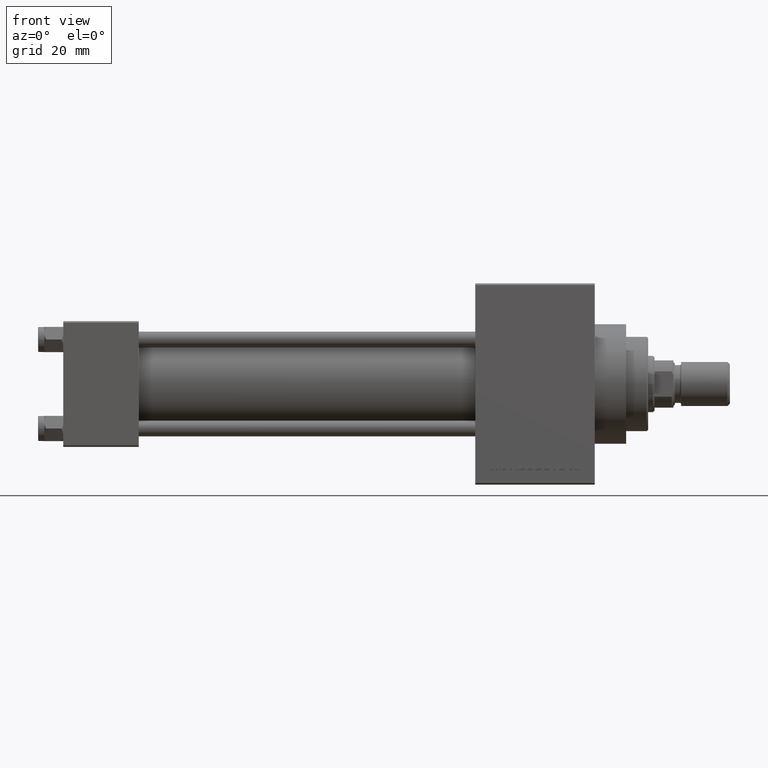
[diagram: clean part render]
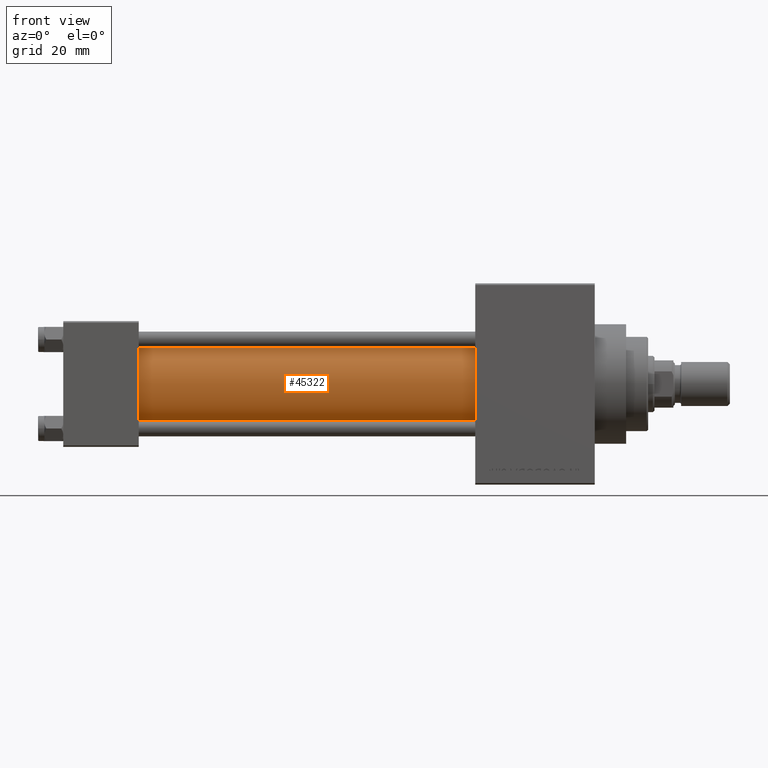
[diagram: same view with one face highlighted and labeled with its STEP entity id]
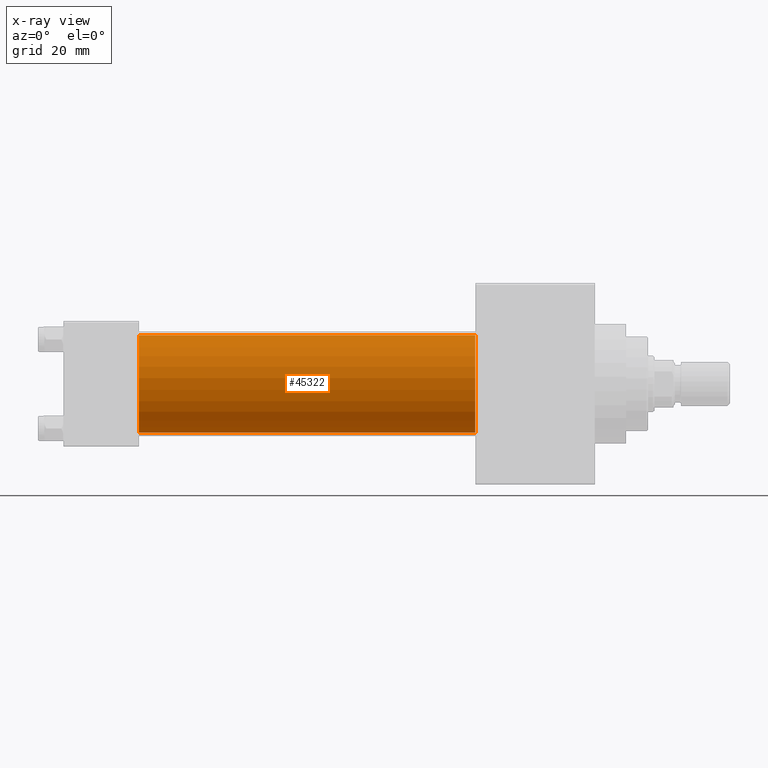
[diagram: x-ray of the same camera — body ghosted, the highlighted face saturated]
A machine part, front view. The second image highlights one B-rep face of the part: STEP entity #45322.
The next image is the same camera in x-ray: the body ghosted, the highlighted face saturated — about 0% of this face is hidden behind the body in this view.
In plain terms, the highlighted cylindrical surface (partial cylindrical patch) has radius 15.5 mm, axis along (-1, -0, -0).
Its self-contained STEP definition (entity closure, byte-faithful):
#356 = DIRECTION ( 'NONE',  ( -1.000000000000000000, -0.000000000000000000, -0.000000000000000000 ) ) ;
#902 = AXIS2_PLACEMENT_3D ( 'NONE', #8734, #4418, #23408 ) ;
#2877 = VECTOR ( 'NONE', #28316, 1000.000000000000000 ) ;
#4154 = EDGE_CURVE ( 'NONE', #38408, #46914, #37746, .T. ) ;
#4418 = DIRECTION ( 'NONE',  ( 1.000000000000000000, 0.000000000000000000, 0.000000000000000000 ) ) ;
#4882 = CARTESIAN_POINT ( 'NONE',  ( 131.0000000000000000, -2.602085213965210642E-15, 15.50000000000000000 ) ) ;
#6272 = CARTESIAN_POINT ( 'NONE',  ( 131.0000000000000000, -7.038826752868131828E-16, -15.50000000000000000 ) ) ;
#6770 = EDGE_CURVE ( 'NONE', #46914, #12210, #23609, .T. ) ;
#8734 = CARTESIAN_POINT ( 'NONE',  ( 131.0000000000000000, -2.602085213965210642E-15, 0.000000000000000000 ) ) ;
#10277 = CARTESIAN_POINT ( 'NONE',  ( 23.99999999999999289, -2.602085213965210642E-15, 0.000000000000000000 ) ) ;
#12210 = VERTEX_POINT ( 'NONE', #14499 ) ;
#13654 = DIRECTION ( 'NONE',  ( 0.000000000000000000, 0.000000000000000000, 1.000000000000000000 ) ) ;
#13883 = CARTESIAN_POINT ( 'NONE',  ( 131.0000000000000000, -2.602085213965210642E-15, 15.50000000000000000 ) ) ;
#14499 = CARTESIAN_POINT ( 'NONE',  ( 23.99999999999999289, -7.038826752868131828E-16, -15.50000000000000000 ) ) ;
#16904 = VERTEX_POINT ( 'NONE', #22179 ) ;
#20826 = ORIENTED_EDGE ( 'NONE', *, *, #6770, .F. ) ;
#22179 = CARTESIAN_POINT ( 'NONE',  ( 23.99999999999999289, -2.602085213965210642E-15, 15.50000000000000000 ) ) ;
#22476 = CARTESIAN_POINT ( 'NONE',  ( 131.0000000000000000, -2.602085213965210642E-15, 0.000000000000000000 ) ) ;
#23408 = DIRECTION ( 'NONE',  ( 0.000000000000000000, 0.000000000000000000, -1.000000000000000000 ) ) ;
#23609 = LINE ( 'NONE', #31760, #26324 ) ;
#25793 = AXIS2_PLACEMENT_3D ( 'NONE', #22476, #356, #29706 ) ;
#26324 = VECTOR ( 'NONE', #34901, 1000.000000000000000 ) ;
#26797 = CYLINDRICAL_SURFACE ( 'NONE', #25793, 15.50000000000000000 ) ;
#27868 = EDGE_LOOP ( 'NONE', ( #20826, #40325, #41860, #29237 ) ) ;
#28316 = DIRECTION ( 'NONE',  ( -1.000000000000000000, -0.000000000000000000, -0.000000000000000000 ) ) ;
#28795 = DIRECTION ( 'NONE',  ( 1.000000000000000000, 0.000000000000000000, 0.000000000000000000 ) ) ;
#29237 = ORIENTED_EDGE ( 'NONE', *, *, #33667, .T. ) ;
#29706 = DIRECTION ( 'NONE',  ( 0.000000000000000000, 0.000000000000000000, 1.000000000000000000 ) ) ;
#31760 = CARTESIAN_POINT ( 'NONE',  ( 131.0000000000000000, -7.038826752868131828E-16, -15.50000000000000000 ) ) ;
#33667 = EDGE_CURVE ( 'NONE', #16904, #12210, #43269, .T. ) ;
#34901 = DIRECTION ( 'NONE',  ( -1.000000000000000000, -0.000000000000000000, -0.000000000000000000 ) ) ;
#37746 = CIRCLE ( 'NONE', #902, 15.50000000000000000 ) ;
#38408 = VERTEX_POINT ( 'NONE', #4882 ) ;
#40325 = ORIENTED_EDGE ( 'NONE', *, *, #4154, .F. ) ;
#40991 = AXIS2_PLACEMENT_3D ( 'NONE', #10277, #28795, #13654 ) ;
#41860 = ORIENTED_EDGE ( 'NONE', *, *, #43880, .T. ) ;
#43269 = CIRCLE ( 'NONE', #40991, 15.50000000000000000 ) ;
#43880 = EDGE_CURVE ( 'NONE', #38408, #16904, #47300, .T. ) ;
#45077 = FACE_OUTER_BOUND ( 'NONE', #27868, .T. ) ;
#45322 = ADVANCED_FACE ( 'NONE', ( #45077 ), #26797, .T. ) ;
#46914 = VERTEX_POINT ( 'NONE', #6272 ) ;
#47300 = LINE ( 'NONE', #13883, #2877 ) ;